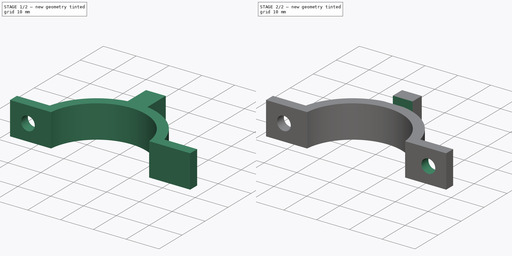
[diagram: build sequence overview — one tinted view per stage of 2, left to right]
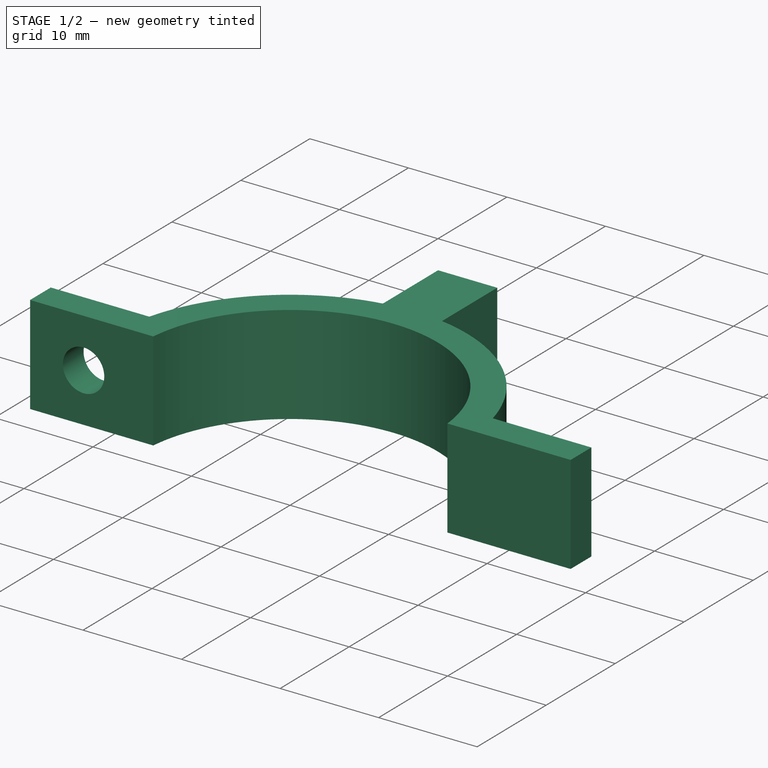
[diagram: stage 1 of 2 — iso view after this stage's code; geometry added in this stage tinted green]
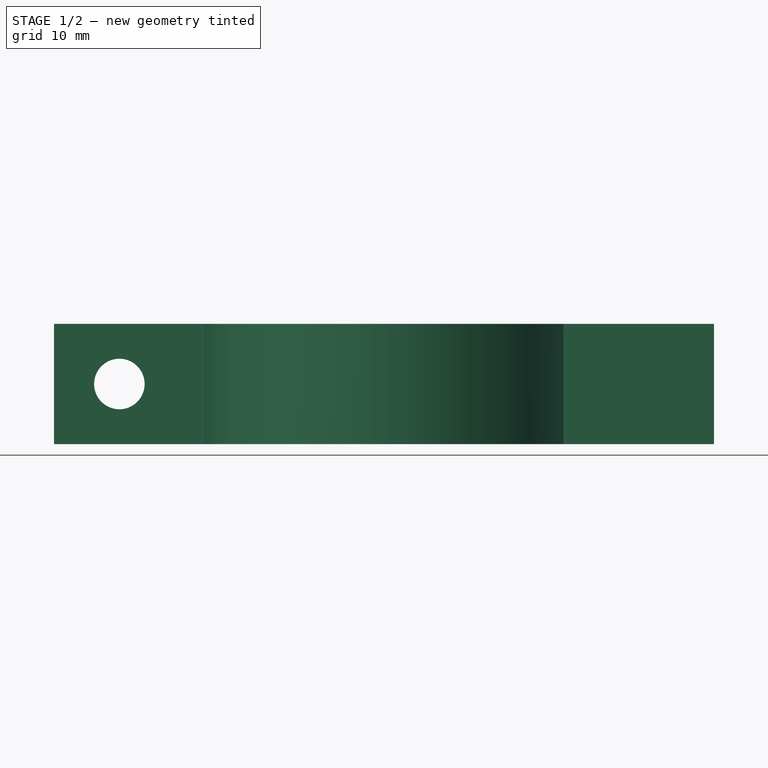
[diagram: stage 1 of 2 — front view after this stage's code; geometry added in this stage tinted green]
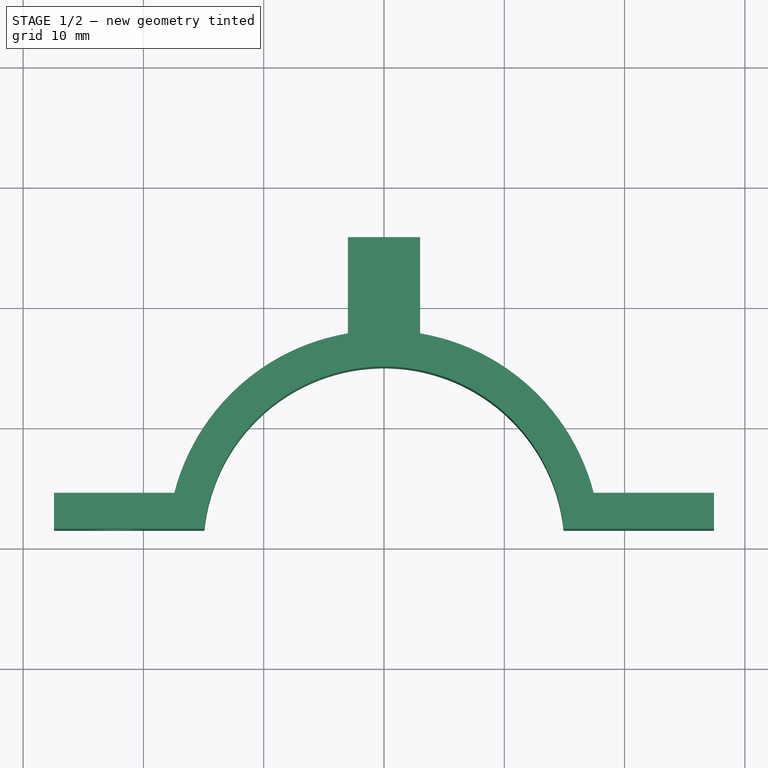
[diagram: stage 1 of 2 — top view after this stage's code; geometry added in this stage tinted green]
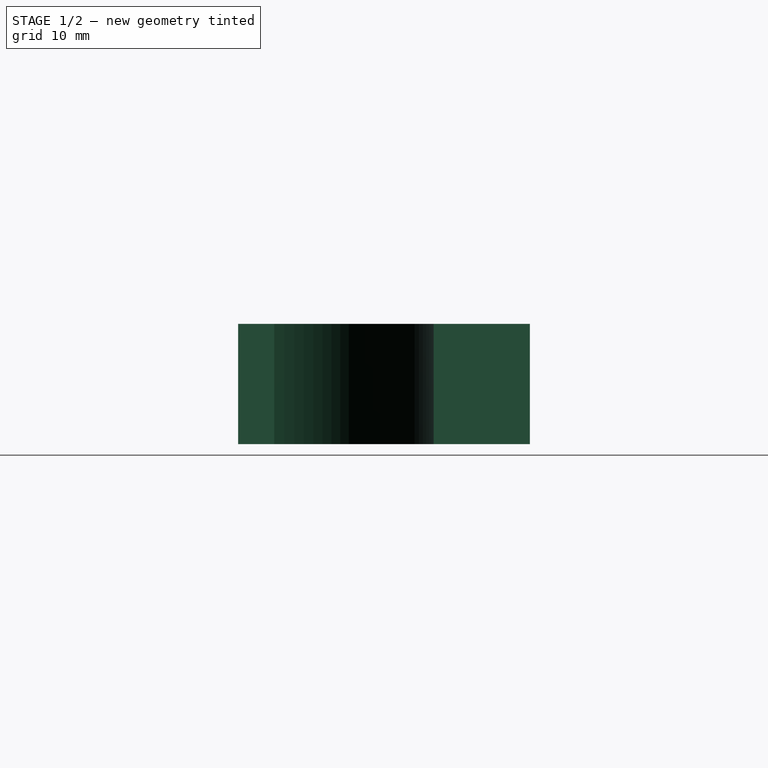
[diagram: stage 1 of 2 — right view after this stage's code; geometry added in this stage tinted green]
FCSTD DOCUMENT  (FreeCAD 0.22R38127 (Git))
Label: collar
License: All rights reserved
LicenseURL: http://en.wikipedia.org/wiki/All_rights_reserved
objects: Sketcher::SketchObject×3, PartDesign::Pocket×2, PartDesign::Pad×1, PartDesign::Mirrored×1, PartDesign::Body×1
note: 11 computed .brp shape members not serialized (recipe doc carries the construction recipe); baked Part::Feature solids carry a one-line shape summary decoded from their .brp

FEATURE [Sketcher::SketchObject] Sketch
  AttachmentSupport = -> [XY_Plane]
  FullyConstrained = true
  MapMode = 5
  sketch-geometry (12):
    g0: ArcOfCircle CenterX=0 CenterY=0 CenterZ=0 NormalX=0 NormalY=0 NormalZ=1 AngleXU=0 Radius=15 StartAngle=0.100167 EndAngle=3.04143
    g1: LineSegment StartX=-17.4284 StartY=4.5 StartZ=0 EndX=-27.4284 EndY=4.5 EndZ=0
    g2: LineSegment StartX=-27.4284 StartY=4.5 StartZ=0 EndX=-27.4284 EndY=1.5 EndZ=0
    g3: LineSegment StartX=-27.4284 StartY=1.5 StartZ=0 EndX=-14.9248 EndY=1.5 EndZ=0
    g4: LineSegment StartX=14.9248 StartY=1.5 StartZ=0 EndX=27.4284 EndY=1.5 EndZ=0
    g5: LineSegment StartX=27.4284 StartY=1.5 StartZ=0 EndX=27.4284 EndY=4.5 EndZ=0
    g6: LineSegment StartX=27.4284 StartY=4.5 StartZ=0 EndX=17.4284 EndY=4.5 EndZ=0
    g7: ArcOfCircle CenterX=0 CenterY=0 CenterZ=0 NormalX=0 NormalY=0 NormalZ=1 AngleXU=0 Radius=18 StartAngle=1.73824 EndAngle=2.88891
    g8: ArcOfCircle CenterX=0 CenterY=0 CenterZ=0 NormalX=0 NormalY=0 NormalZ=1 AngleXU=0 Radius=18 StartAngle=0.25268 EndAngle=1.40335
    g9: LineSegment StartX=-3 StartY=17.7482 StartZ=0 EndX=-3 EndY=25.7482 EndZ=0
    g10: LineSegment StartX=-3 StartY=25.7482 StartZ=0 EndX=3 EndY=25.7482 EndZ=0
    g11: LineSegment StartX=3 StartY=25.7482 StartZ=0 EndX=3 EndY=17.7482 EndZ=0
  constraints (33):
    c: Coincident(g1,g2)
    c: Coincident(g2,g3)
    c: Coincident(g3,g0)
    c: Coincident(g0,g4)
    c: Coincident(g4,g5)
    c: Vertical(g5)
    c: Vertical(g2)
    c: Horizontal(g1)
    c: Horizontal(g6)
    c: Diameter(g0) = 30
    c: Horizontal(g6,g1)
    c: Coincident(g5,g6)
    c: DistanceX(g1,g1) = 10
    c: DistanceY(g2,g2) = 3
    c: Coincident(g0,g-1)
    c: Symmetric(g4,g2,g-2)
    c: Horizontal(g3)
    c: Horizontal(g4)
    c: DistanceY(g-1,g2) = 1.5
    c: Coincident(g7,g0)
    c: Coincident(g7,g1)
    c: Coincident(g8,g0)
    c: Coincident(g8,g6)
    c: Coincident(g7,g9)
    c: Coincident(g9,g10)
    c: Coincident(g10,g11)
    c: Coincident(g11,g8)
    c: Symmetric(g7,g8,g-2)
    c: DistanceX(g7,g8) = 6
    c: Symmetric(g9,g10,g-2)
    c: Vertical(g9)
    c: DistanceY(g9,g9) = 8
    c: Diameter(g7) = 36
FEATURE [PartDesign::Pad] Pad
  Direction = (0,0,1)
  Length = 10
  Length2 = 10
  Profile = -> Sketch
  ReferenceAxis = -> Sketch [N_Axis]
  Suppressed = false
  Type = 0
FEATURE [Sketcher::SketchObject] Sketch001
  AttachmentSupport = -> [XZ_Plane]
  FullyConstrained = true
  MapMode = 5
  Placement = pos=(0,0,0) rot=(1,0,0;1.5708rad)
  sketch-geometry (1):
    g0: Circle CenterX=-22 CenterY=5 CenterZ=0 NormalX=0 NormalY=0 NormalZ=1 AngleXU=0 Radius=2.1
  constraints (3):
    c: DistanceY(g-1,g0) = 5
    c: DistanceX(g0,g-1) = 22
    c: Diameter(g0) = 4.2
FEATURE [PartDesign::Pocket] Pocket
  BaseFeature = -> Pad
  Direction = (0,1,-2e-16)
  Length = 5
  Length2 = 5
  Profile = -> Sketch001
  ReferenceAxis = -> Sketch001 [N_Axis]
  Suppressed = false
  Type = 1
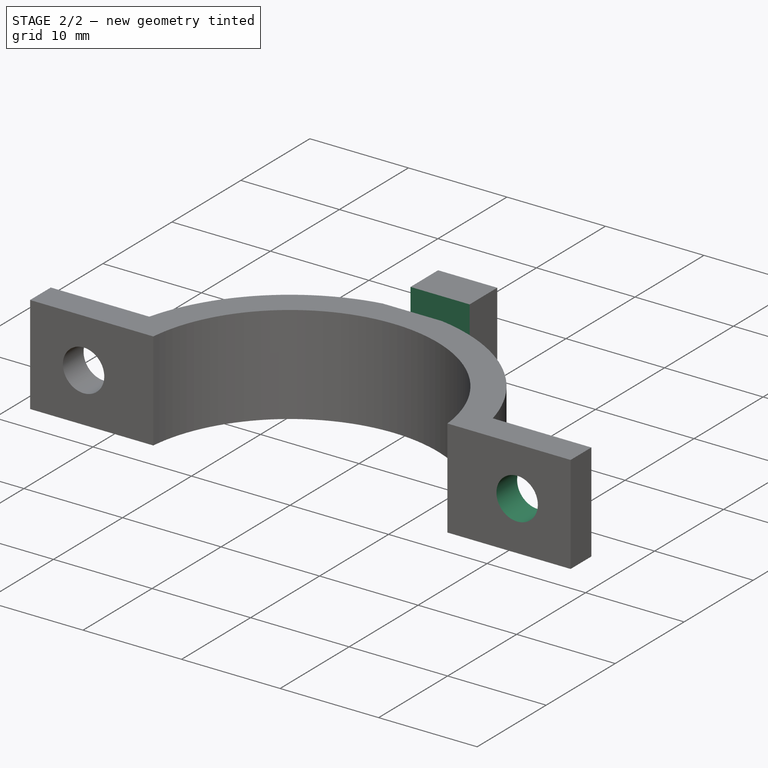
[diagram: stage 2 of 2 — iso view after this stage's code; geometry added in this stage tinted green]
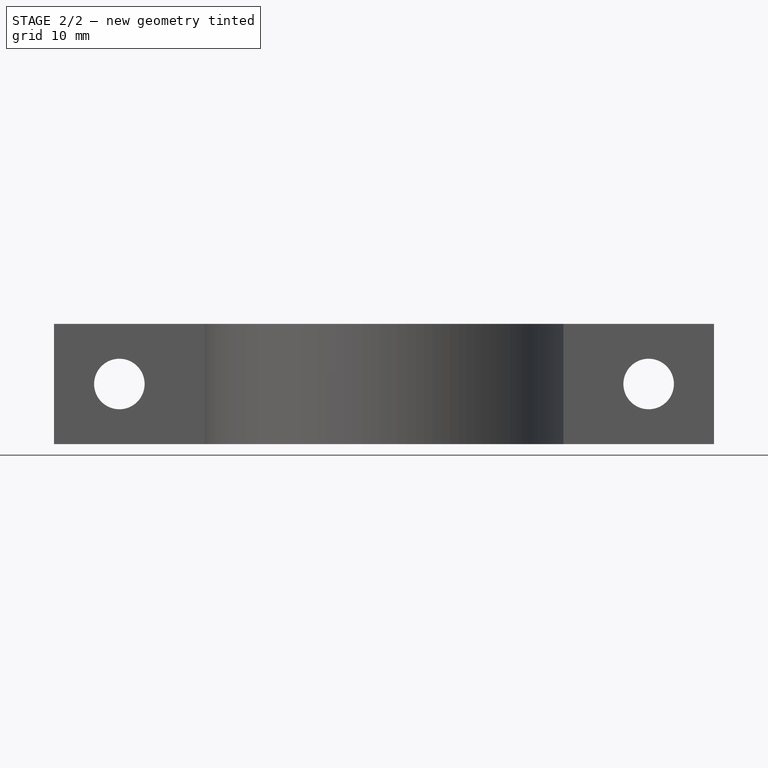
[diagram: stage 2 of 2 — front view after this stage's code; geometry added in this stage tinted green]
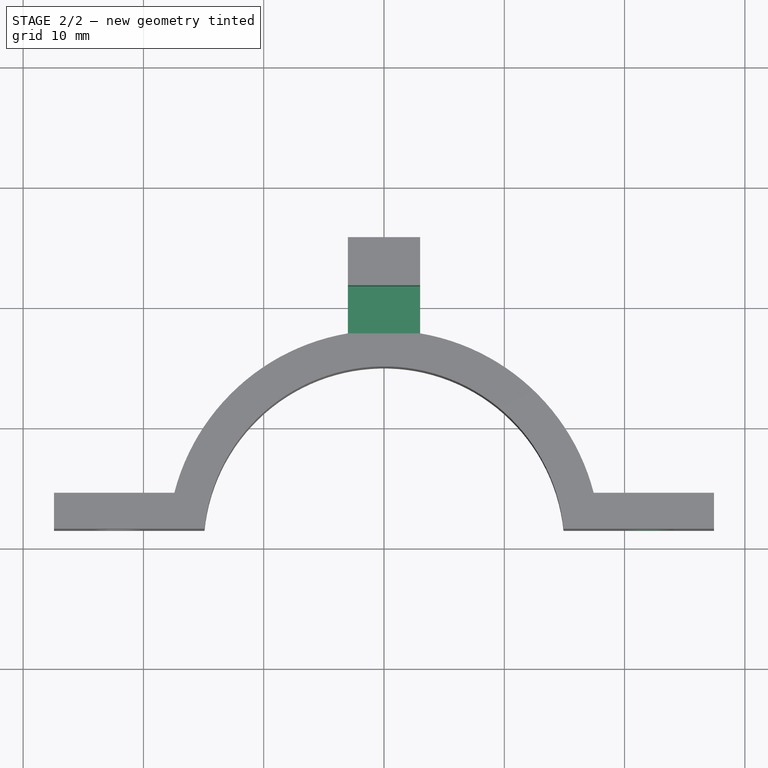
[diagram: stage 2 of 2 — top view after this stage's code; geometry added in this stage tinted green]
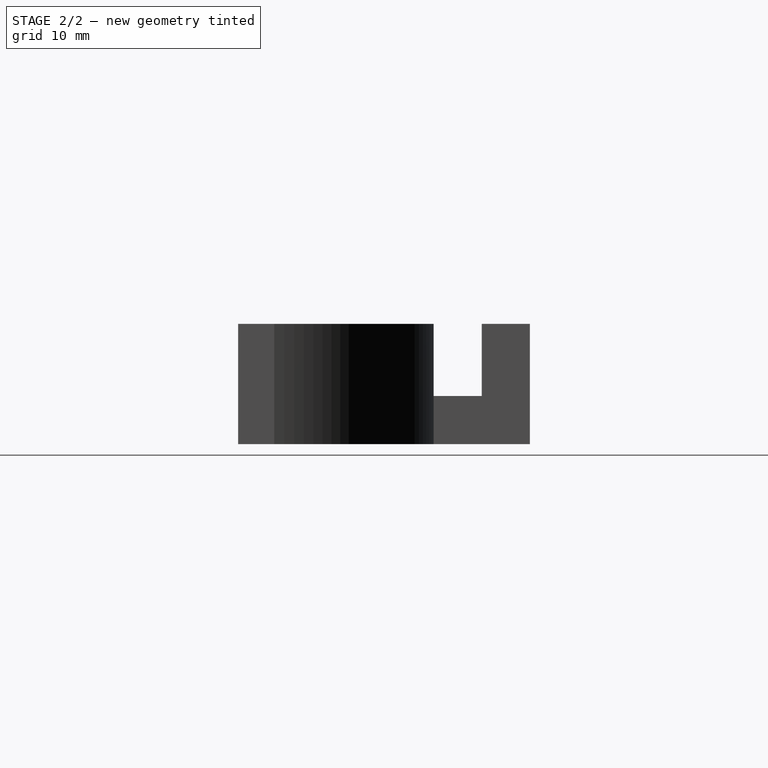
[diagram: stage 2 of 2 — right view after this stage's code; geometry added in this stage tinted green]
FEATURE [PartDesign::Mirrored] Mirrored
  BaseFeature = -> Pocket
  MirrorPlane = -> Sketch001 [V_Axis]
  Originals = -> [Pocket]
  Suppressed = false
  TransformMode = 0
FEATURE [Sketcher::SketchObject] Sketch002
  AttachmentSupport = -> [YZ_Plane]
  ExternalGeometry = -> [Mirrored]
  FullyConstrained = true
  MapMode = 5
  Placement = pos=(0,0,0) rot=(0.57735,0.57735,0.57735;2.0944rad)
  sketch-geometry (5):
    g0: LineSegment StartX=17.7482 StartY=10 StartZ=0 EndX=17.7482 EndY=4 EndZ=0
    g1: LineSegment StartX=17.7482 StartY=4 StartZ=0 EndX=21.7482 EndY=4 EndZ=0
    g2: LineSegment StartX=21.7482 StartY=4 StartZ=0 EndX=21.7482 EndY=10 EndZ=0
    g3: LineSegment StartX=21.7482 StartY=10 StartZ=0 EndX=17.7482 EndY=10 EndZ=0
    g4: GeomPoint X=19.7482 Y=10 Z=0
  constraints (12):
    c: Coincident(g0,g1)
    c: Coincident(g1,g2)
    c: Coincident(g2,g3)
    c: Coincident(g3,g0)
    c: Vertical(g0)
    c: Vertical(g2)
    c: Horizontal(g1)
    c: Horizontal(g3)
    c: Symmetric(g0,g2,g4)
    c: DistanceX(g3,g3) = 4
    c: DistanceY(g-1,g0) = 4
    c: Coincident(g0,g-3)
FEATURE [PartDesign::Pocket] Pocket001
  BaseFeature = -> Mirrored
  Direction = (-1,0,0)
  Length = 5
  Length2 = 5
  Midplane = true
  Profile = -> Sketch002
  ReferenceAxis = -> Sketch002 [N_Axis]
  Refine = true
  Suppressed = false
  Type = 1
FEATURE [PartDesign::Body] Body
  AllowCompound = false
  Group = -> [Sketch,Pad,Sketch001,Pocket,Mirrored,Sketch002,Pocket001]
  Origin = -> Origin
  Tip = -> Pocket001
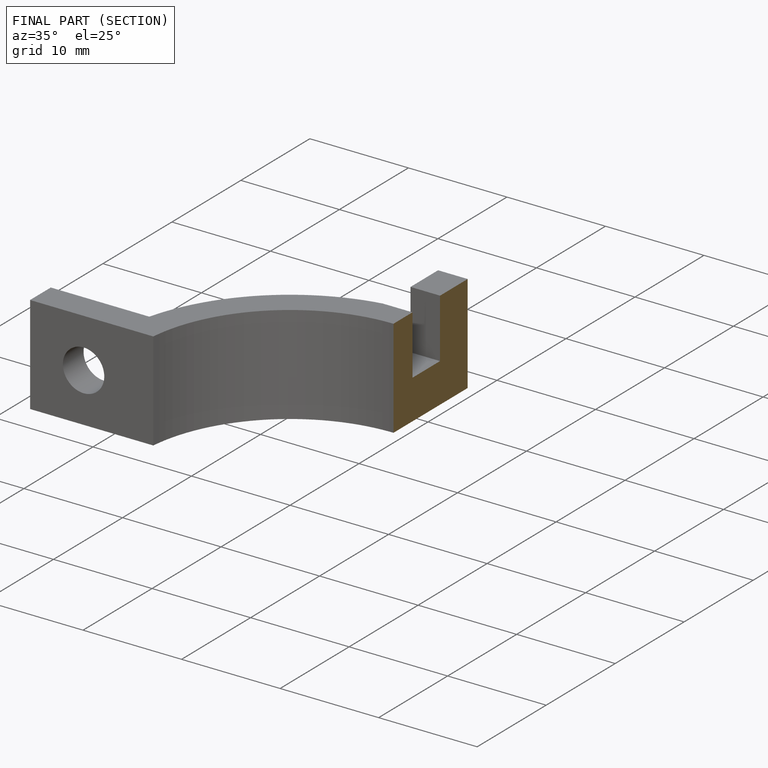
[diagram: finished part — half-section view (interior)]
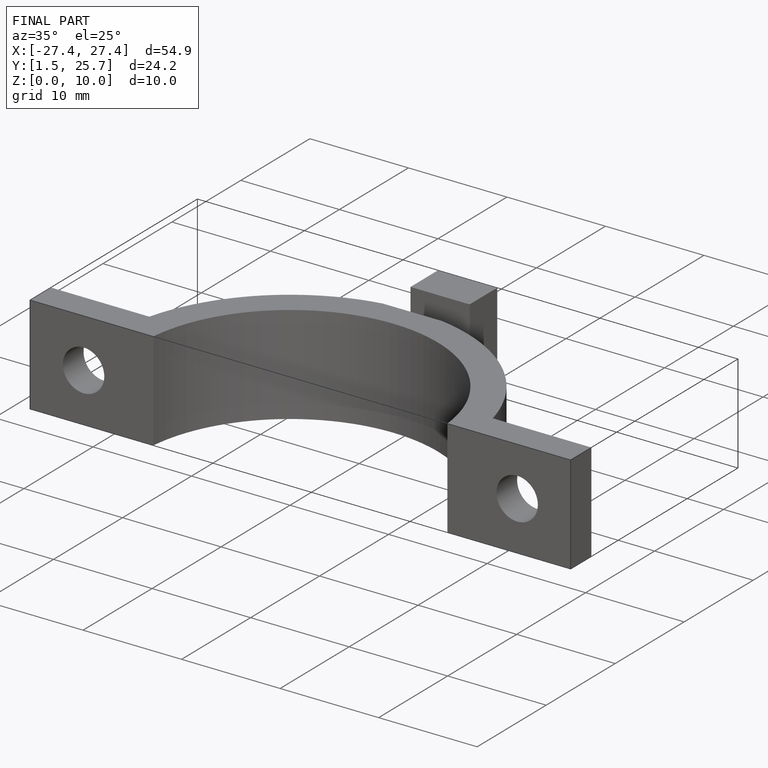
[diagram: finished part — iso view with bounding-box wireframe]
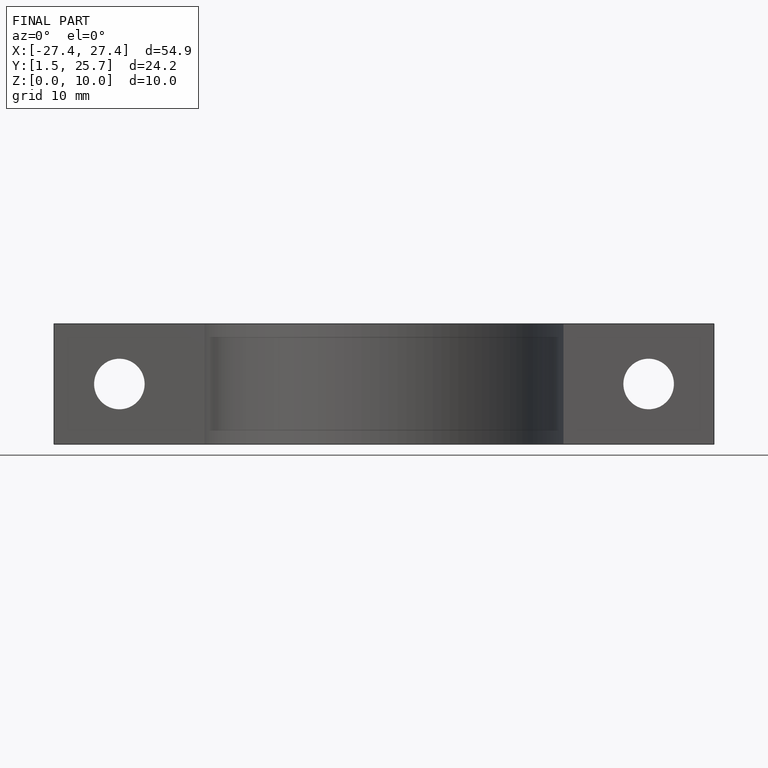
[diagram: finished part — front view with bounding-box wireframe]
